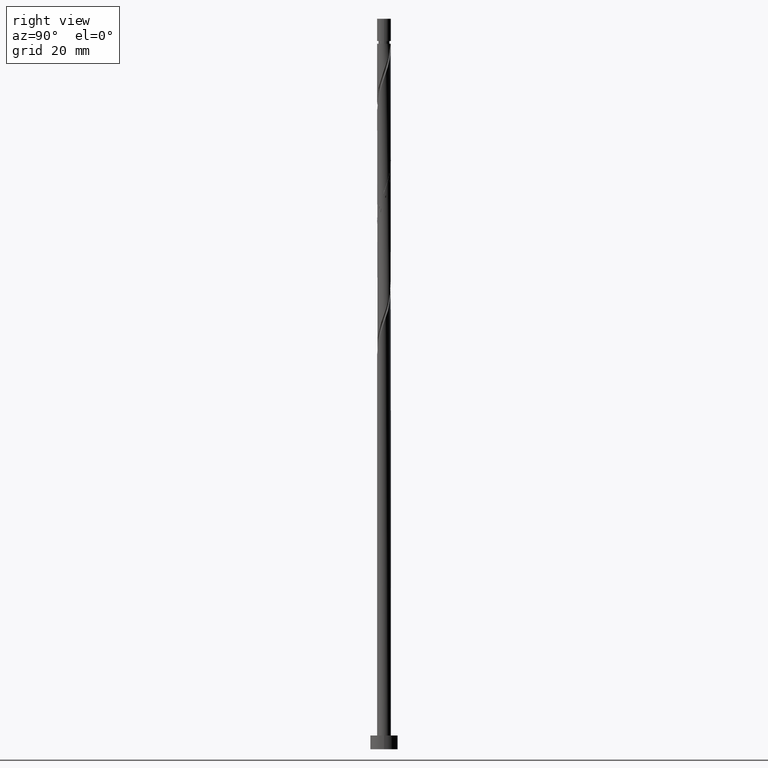
[diagram: clean part render]
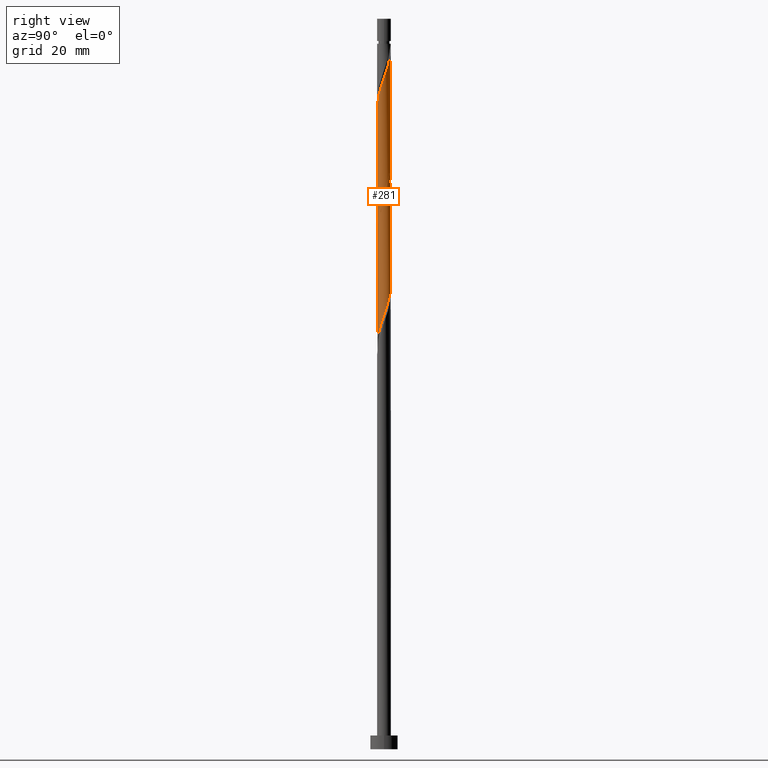
[diagram: same view with one face highlighted and labeled with its STEP entity id]
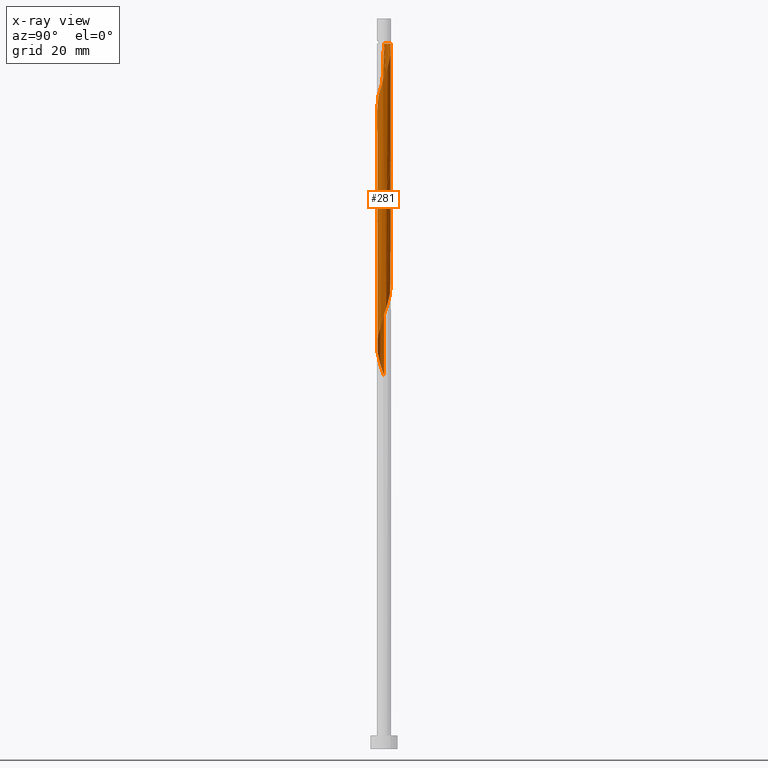
[diagram: x-ray of the same camera — body ghosted, the highlighted face saturated]
A machine part, right view. The second image highlights one B-rep face of the part: STEP entity #281.
The next image is the same camera in x-ray: the body ghosted, the highlighted face saturated — about 0% of this face is hidden behind the body in this view.
In plain terms, the highlighted cylindrical surface (bore or boss wall) has radius 1.5 mm, axis along (-0, -0, -1).
Its self-contained STEP definition (entity closure, byte-faithful):
#6 = CARTESIAN_POINT ( 'NONE',  ( 0.5098503233045974525, 1.427082721123913878, 100.1025614358779023 ) ) ;
#8 = CARTESIAN_POINT ( 'NONE',  ( 1.213159217434433890, -0.8821817914431652197, 92.22377355709001279 ) ) ;
#11 = EDGE_CURVE ( 'NONE', #342, #1527, #286, .T. ) ;
#12 = VERTEX_POINT ( 'NONE', #1467 ) ;
#15 = CARTESIAN_POINT ( 'NONE',  ( 1.412398115979204061, 0.5492212733340094966, 96.46619779951424789 ) ) ;
#39 = CARTESIAN_POINT ( 'NONE',  ( 0.5436309926831520700, -1.398021939668448566, 89.79953113284760491 ) ) ;
#45 = VERTEX_POINT ( 'NONE', #613 ) ;
#49 = CARTESIAN_POINT ( 'NONE',  ( -0.08714213895937755749, 1.512917278876088734, 153.4358947692112451 ) ) ;
#57 = VERTEX_POINT ( 'NONE', #401 ) ;
#70 = CARTESIAN_POINT ( 'NONE',  ( 1.045853010636306202, -1.075263446855226235, 143.1328644661810188 ) ) ;
#78 = CARTESIAN_POINT ( 'NONE',  ( -1.500000000000002442, 7.702762662300539942E-16, 133.1925008959709942 ) ) ;
#87 = CARTESIAN_POINT ( 'NONE',  ( 0.2984962311319868666, 1.469999999999999751, 127.3752887086051828 ) ) ;
#93 = CARTESIAN_POINT ( 'NONE',  ( -0.7005518949784516058, -1.326358564808965745, 112.8298341631506219 ) ) ;
#97 = DIRECTION ( 'NONE',  ( -1.000000000000000000, 0.000000000000000000, 0.000000000000000000 ) ) ;
#102 = CARTESIAN_POINT ( 'NONE',  ( 1.412557076706236980, -0.5046607821568163121, 120.1025614358778881 ) ) ;
#117 = LINE ( 'NONE', #428, #1321 ) ;
#120 = CARTESIAN_POINT ( 'NONE',  ( 1.485116343010913109, -0.3015657354974669579, 94.04195537527184001 ) ) ;
#126 = CARTESIAN_POINT ( 'NONE',  ( 1.306425335299753243, 0.7370568792752199005, 97.07225840557485697 ) ) ;
#138 = DIRECTION ( 'NONE',  ( -1.000000000000000000, 0.000000000000000000, 0.000000000000000000 ) ) ;
#151 = DIRECTION ( 'NONE',  ( -0.000000000000000000, -0.000000000000000000, -1.000000000000000000 ) ) ;
#158 = CARTESIAN_POINT ( 'NONE',  ( 0.7005518949784523830, -1.326358564808968632, 141.9207432540597722 ) ) ;
#161 = CARTESIAN_POINT ( 'NONE',  ( 1.500000000000000222, 1.836970198721030181E-16, 159.5000000000000000 ) ) ;
#171 = CARTESIAN_POINT ( 'NONE',  ( -1.485116343010915330, -0.3015657354974669024, 134.0419553752718684 ) ) ;
#177 = CARTESIAN_POINT ( 'NONE',  ( 0.1277418221353521510, 1.494550777617658754, 152.8298341631505934 ) ) ;
#186 = CARTESIAN_POINT ( 'NONE',  ( -1.213159217434436110, -0.8821817914431666630, 135.8601371934536814 ) ) ;
#188 = CARTESIAN_POINT ( 'NONE',  ( 0.08714213895937576726, 1.512917278876086069, 127.9813493146657919 ) ) ;
#195 = CARTESIAN_POINT ( 'NONE',  ( -1.500000000000000000, 0.04316328978573484576, 134.7693118498545175 ) ) ;
#203 = CARTESIAN_POINT ( 'NONE',  ( -1.213159217434433668, 0.8821817914431653307, 132.2237735570900270 ) ) ;
#209 = CARTESIAN_POINT ( 'NONE',  ( -1.485116343010913109, 0.3015657354974668469, 107.3752887086051686 ) ) ;
#212 = CARTESIAN_POINT ( 'NONE',  ( 1.412398115979204061, 0.5492212733340094966, 123.1328644661809477 ) ) ;
#214 = LINE ( 'NONE', #321, #749 ) ;
#220 = CARTESIAN_POINT ( 'NONE',  ( 0.3426257832300790840, -1.476184276359225667, 115.8601371934536672 ) ) ;
#236 = CARTESIAN_POINT ( 'NONE',  ( 0.7005518949784517169, 1.326358564808965745, 99.49650082981729327 ) ) ;
#238 = CARTESIAN_POINT ( 'NONE',  ( -1.306425335299753243, -0.7370568792752196785, 83.73892507224151416 ) ) ;
#239 = EDGE_CURVE ( 'NONE', #45, #1527, #721, .T. ) ;
#246 = CARTESIAN_POINT ( 'NONE',  ( -1.500000000000000444, 1.757426432660816093E-15, 81.55807652123938567 ) ) ;
#257 = DIRECTION ( 'NONE',  ( -0.000000000000000000, -0.000000000000000000, -1.000000000000000000 ) ) ;
#268 = CARTESIAN_POINT ( 'NONE',  ( -0.1277418221353519845, -1.494550777617658754, 139.4965008298172791 ) ) ;
#275 = CARTESIAN_POINT ( 'NONE',  ( 1.500000000000000222, 1.836970198721030181E-16, 154.0419553752718400 ) ) ;
#281 = ADVANCED_FACE ( 'NONE', ( #545 ), #1027, .T. ) ;
#286 = LINE ( 'NONE', #161, #1179 ) ;
#291 = CARTESIAN_POINT ( 'NONE',  ( -0.5436309926831534023, -1.398021939668451008, 138.2843796176961177 ) ) ;
#299 = CARTESIAN_POINT ( 'NONE',  ( 0.8912534666523075355, -1.225634408494020722, 142.5268038601203102 ) ) ;
#308 = CARTESIAN_POINT ( 'NONE',  ( 0.9154784133017650483, -1.188233678523918035, 117.6783190116354660 ) ) ;
#310 = CARTESIAN_POINT ( 'NONE',  ( -0.7446362021362251671, 1.319859602977671020, 130.4055917389081856 ) ) ;
#314 = CARTESIAN_POINT ( 'NONE',  ( -0.5436309926831520700, 1.398021939668448566, 103.1328644661809193 ) ) ;
#321 = CARTESIAN_POINT ( 'NONE',  ( -1.500000000000000222, 0.000000000000000000, 159.5000000000000000 ) ) ;
#329 = DIRECTION ( 'NONE',  ( -0.000000000000000000, -0.000000000000000000, -1.000000000000000000 ) ) ;
#342 = VERTEX_POINT ( 'NONE', #275 ) ;
#355 = CARTESIAN_POINT ( 'NONE',  ( 1.412557076706236980, -0.5046607821568163121, 93.43589476921121673 ) ) ;
#358 = ORIENTED_EDGE ( 'NONE', *, *, #1291, .F. ) ;
#383 = EDGE_CURVE ( 'NONE', #1527, #862, #711, .T. ) ;
#398 =( BOUNDED_CURVE ( )  B_SPLINE_CURVE ( 2, ( #78, #1366, #754, #171, #1351, #1256, #186, #1233, #1240, #421, #291, #906, #268, #1223, #519, #513, #158, #299, #70, #527, #1134, #647, #626, #1114, #1141, #999, #533, #412, #1479, #775, #639, #543, #991, #1008, #177, #49, #1126 ),
 .UNSPECIFIED., .F., .T. ) 
 B_SPLINE_CURVE_WITH_KNOTS ( ( 3, 2, 2, 2, 2, 2, 2, 2, 2, 2, 2, 2, 2, 2, 2, 2, 2, 2, 3 ),
 ( 0.5545252162417514397, 0.5568181818181818787, 0.5681818181818181213, 0.5795454545454545858, 0.5909090909090908283, 0.6022727272727272929, 0.6136363636363636465, 0.6250000000000000000, 0.6363636363636364646, 0.6477272727272727071, 0.6590909090909091717, 0.6704545454545455252, 0.6818181818181818787, 0.6931818181818182323, 0.7045454545454546968, 0.7159090909090909394, 0.7272727272727274039, 0.7386363636363637575, 0.7500000000000001110 ),
 .UNSPECIFIED. ) 
 CURVE ( )  GEOMETRIC_REPRESENTATION_ITEM ( )  RATIONAL_B_SPLINE_CURVE ( ( 0.9061101570135737804, 0.9072237824201559997, 0.9090909090909334855, 0.8998376744372357239, 0.9090909090909334855, 0.8998376744372357239, 0.9090909090909334855, 0.8998376744372357239, 0.9090909090909334855, 0.8998376744372357239, 0.9090909090909334855, 0.8998376744372357239, 0.9090909090909334855, 0.8998376744372357239, 0.9090909090909334855, 0.8998376744372357239, 0.9090909090909334855, 0.8998376744372357239, 0.9090909090909334855, 0.8998376744372357239, 0.9090909090909334855, 0.8998376744372357239, 0.9090909090909334855, 0.8998376744372357239, 0.9090909090909334855, 0.8998376744372357239, 0.9090909090909334855, 0.8998376744372357239, 0.9090909090909334855, 0.8998376744372357239, 0.9090909090909334855, 0.8998376744372357239, 0.9090909090909334855, 0.8998376744372357239, 0.9090909090909334855, 0.8998376744372356129, 0.9090909090909335966 ) ) 
 REPRESENTATION_ITEM ( '' )  );
#401 = CARTESIAN_POINT ( 'NONE',  ( -1.499999999999993561, 0.000000000000000000, 154.0419553752718400 ) ) ;
#407 = CARTESIAN_POINT ( 'NONE',  ( -0.9154784133017651593, 1.188233678523918035, 131.0116523449688088 ) ) ;
#412 = CARTESIAN_POINT ( 'NONE',  ( 1.339997810401563738, 0.7077558288161661659, 148.5874099207263725 ) ) ;
#420 = CARTESIAN_POINT ( 'NONE',  ( 0.1277418221353510408, -1.494550777617655868, 115.2540765873930297 ) ) ;
#421 = CARTESIAN_POINT ( 'NONE',  ( -0.7446362021362263883, -1.319859602977673019, 137.6783190116354660 ) ) ;
#428 = CARTESIAN_POINT ( 'NONE',  ( -1.500000000000000222, 0.000000000000000000, 159.5000000000000000 ) ) ;
#430 = CARTESIAN_POINT ( 'NONE',  ( 1.497517962423704718, -0.08625515763335836472, 121.3146826479991063 ) ) ;
#433 = CARTESIAN_POINT ( 'NONE',  ( 1.306425335299753243, 0.7370568792752199005, 123.7389250722415284 ) ) ;
#449 = CARTESIAN_POINT ( 'NONE',  ( -0.3426257832300788064, 1.476184276359225889, 102.5268038601203244 ) ) ;
#476 = AXIS2_PLACEMENT_3D ( 'NONE', #742, #151, #138 ) ;
#478 = CARTESIAN_POINT ( 'NONE',  ( 1.461158848907850416, 0.3391383467823799180, 95.86013719345365303 ) ) ;
#489 = CARTESIAN_POINT ( 'NONE',  ( -1.045853010636305314, -1.075263446855223792, 84.95104628436274652 ) ) ;
#496 = CARTESIAN_POINT ( 'NONE',  ( 0.7446362021362249450, -1.319859602977671020, 90.40559173890821398 ) ) ;
#513 = CARTESIAN_POINT ( 'NONE',  ( 0.5098503233045976746, -1.427082721123916320, 141.3146826479991205 ) ) ;
#519 = CARTESIAN_POINT ( 'NONE',  ( 0.2984962311319867556, -1.470000000000002416, 140.7086220419385540 ) ) ;
#527 = CARTESIAN_POINT ( 'NONE',  ( 1.200452554620305756, -0.9248924852164310817, 143.7389250722415568 ) ) ;
#533 = CARTESIAN_POINT ( 'NONE',  ( 1.412557076706239645, 0.5046607821568165342, 147.9813493146658061 ) ) ;
#542 = CARTESIAN_POINT ( 'NONE',  ( -1.200452554620303758, -0.9248924852164293053, 111.0116523449688231 ) ) ;
#543 = CARTESIAN_POINT ( 'NONE',  ( 0.7446362021362260553, 1.319859602977673019, 151.0116523449688373 ) ) ;
#545 = FACE_OUTER_BOUND ( 'NONE', #832, .T. ) ;
#557 = CARTESIAN_POINT ( 'NONE',  ( -1.497517962423704718, 0.08625515763335817043, 107.9813493146657919 ) ) ;
#561 = CARTESIAN_POINT ( 'NONE',  ( -0.3426257832300788064, 1.476184276359225889, 129.1934705267869674 ) ) ;
#613 = CARTESIAN_POINT ( 'NONE',  ( -1.500000000000000000, -3.440068761804149870E-16, 134.8914098545727427 ) ) ;
#620 = ORIENTED_EDGE ( 'NONE', *, *, #1123, .T. ) ;
#626 = CARTESIAN_POINT ( 'NONE',  ( 1.461158848907852859, -0.3391383467823813058, 145.5571068904233982 ) ) ;
#639 = CARTESIAN_POINT ( 'NONE',  ( 0.9154784133017670467, 1.188233678523920034, 150.4055917389082424 ) ) ;
#642 = ORIENTED_EDGE ( 'NONE', *, *, #792, .F. ) ;
#647 = CARTESIAN_POINT ( 'NONE',  ( 1.412398115979206503, -0.5492212733340109398, 144.9510462843627465 ) ) ;
#649 = CARTESIAN_POINT ( 'NONE',  ( -1.339997810401561518, 0.7077558288161657218, 132.8298341631506503 ) ) ;
#657 = CARTESIAN_POINT ( 'NONE',  ( 1.200452554620303536, 0.9248924852164295274, 124.3449856783021517 ) ) ;
#671 = CARTESIAN_POINT ( 'NONE',  ( -0.2984962311319866446, -1.469999999999999751, 114.0419553752718116 ) ) ;
#676 = DIRECTION ( 'NONE',  ( -0.000000000000000000, -0.000000000000000000, -1.000000000000000000 ) ) ;
#681 = CARTESIAN_POINT ( 'NONE',  ( -1.306425335299753243, -0.7370568792752196785, 110.4055917389081998 ) ) ;
#688 = DIRECTION ( 'NONE',  ( -0.000000000000000000, -0.000000000000000000, -1.000000000000000000 ) ) ;
#696 = CARTESIAN_POINT ( 'NONE',  ( -1.045853010636305314, -1.075263446855223792, 111.6177129510294037 ) ) ;
#705 = CARTESIAN_POINT ( 'NONE',  ( -1.200452554620303758, -0.9248924852164293053, 84.34498567830216587 ) ) ;
#711 =( BOUNDED_CURVE ( )  B_SPLINE_CURVE ( 2, ( #998, #1472, #430, #915, #102, #1513, #814, #808, #308, #1295, #1054, #220, #420, #1530, #671, #1156, #93, #789, #696, #542, #681, #1172, #1285, #904, #557, #209, #1504, #1521, #1383, #1148, #1032, #1278, #314, #449, #1541, #836, #1069, #6, #236, #952, #1078, #713, #126, #15, #478, #961, #1438, #120, #355, #733, #8, #838, #1080, #496, #39, #1441, #1315, #1193, #979, #1088, #1216, #1201, #489, #705, #238, #715, #826, #846, #246 ),
 .UNSPECIFIED., .F., .T. ) 
 B_SPLINE_CURVE_WITH_KNOTS ( ( 3, 2, 2, 2, 2, 2, 2, 2, 2, 2, 2, 2, 2, 2, 2, 2, 2, 2, 2, 2, 2, 2, 2, 2, 2, 2, 2, 2, 2, 2, 2, 2, 2, 2, 3 ),
 ( 0.5545252162417513286, 0.5568181818181817677, 0.5681818181818182323, 0.5795454545454545858, 0.5909090909090909394, 0.6022727272727272929, 0.6136363636363636465, 0.6250000000000000000, 0.6363636363636363535, 0.6477272727272727071, 0.6590909090909090606, 0.6704545454545454142, 0.6818181818181817677, 0.6931818181818182323, 0.7045454545454545858, 0.7159090909090909394, 0.7272727272727272929, 0.7386363636363636465, 0.7500000000000000000, 0.7613636363636363535, 0.7727272727272727071, 0.7840909090909090606, 0.7954545454545454142, 0.8068181818181817677, 0.8181818181818182323, 0.8295454545454545858, 0.8409090909090909394, 0.8522727272727272929, 0.8636363636363636465, 0.8750000000000000000, 0.8863636363636363535, 0.8977272727272727071, 0.9090909090909091717, 0.9204545454545454142, 0.9295252162417513286 ),
 .UNSPECIFIED. ) 
 CURVE ( )  GEOMETRIC_REPRESENTATION_ITEM ( )  RATIONAL_B_SPLINE_CURVE ( ( 0.9061101570135671190, 0.9072237824201493384, 0.9090909090909268242, 0.8998376744372288405, 0.9090909090909268242, 0.8998376744372288405, 0.9090909090909268242, 0.8998376744372288405, 0.9090909090909268242, 0.8998376744372288405, 0.9090909090909268242, 0.8998376744372288405, 0.9090909090909268242, 0.8998376744372288405, 0.9090909090909268242, 0.8998376744372288405, 0.9090909090909268242, 0.8998376744372288405, 0.9090909090909268242, 0.8998376744372288405, 0.9090909090909268242, 0.8998376744372288405, 0.9090909090909268242, 0.8998376744372288405, 0.9090909090909268242, 0.8998376744372288405, 0.9090909090909268242, 0.8998376744372288405, 0.9090909090909268242, 0.8998376744372288405, 0.9090909090909268242, 0.8998376744372288405, 0.9090909090909268242, 0.8998376744372288405, 0.9090909090909268242, 0.8998376744372288405, 0.9090909090909268242, 0.8998376744372288405, 0.9090909090909268242, 0.8998376744372288405, 0.9090909090909268242, 0.8998376744372288405, 0.9090909090909268242, 0.8998376744372288405, 0.9090909090909268242, 0.8998376744372288405, 0.9090909090909268242, 0.8998376744372288405, 0.9090909090909268242, 0.8998376744372288405, 0.9090909090909268242, 0.8998376744372288405, 0.9090909090909268242, 0.8998376744372288405, 0.9090909090909268242, 0.8998376744372288405, 0.9090909090909268242, 0.8998376744372288405, 0.9090909090909268242, 0.8998376744372288405, 0.9090909090909268242, 0.8998376744372288405, 0.9090909090909268242, 0.8998376744372288405, 0.9090909090909268242, 0.8998376744372288405, 0.9090909090909268242, 0.9017048011080063263, 0.9061101570135671190 ) ) 
 REPRESENTATION_ITEM ( '' )  );
#713 = CARTESIAN_POINT ( 'NONE',  ( 1.200452554620303536, 0.9248924852164295274, 97.67831901163546604 ) ) ;
#715 = CARTESIAN_POINT ( 'NONE',  ( -1.412398115979203617, -0.5492212733340102737, 83.13286446618094772 ) ) ;
#721 =( BOUNDED_CURVE ( )  B_SPLINE_CURVE ( 2, ( #1525, #195, #1251, #1037, #1281, #649, #203, #1404, #407, #310, #769, #561, #1136, #188, #87, #1516, #1270, #908, #892, #657, #433, #212, #1395, #1387, #1369 ),
 .UNSPECIFIED., .F., .T. ) 
 B_SPLINE_CURVE_WITH_KNOTS ( ( 3, 2, 2, 2, 2, 2, 2, 2, 2, 2, 2, 2, 3 ),
 ( 0.4295252162417513841, 0.4318181818181818232, 0.4431818181818181768, 0.4545454545454545303, 0.4659090909090908839, 0.4772727272727272929, 0.4886363636363636465, 0.5000000000000000000, 0.5113636363636363535, 0.5227272727272727071, 0.5340909090909090606, 0.5454545454545454142, 0.5545252162417513286 ),
 .UNSPECIFIED. ) 
 CURVE ( )  GEOMETRIC_REPRESENTATION_ITEM ( )  RATIONAL_B_SPLINE_CURVE ( ( 0.9061101570135671190, 0.9072237824201493384, 0.9090909090909268242, 0.8998376744372288405, 0.9090909090909268242, 0.8998376744372288405, 0.9090909090909268242, 0.8998376744372288405, 0.9090909090909268242, 0.8998376744372288405, 0.9090909090909268242, 0.8998376744372288405, 0.9090909090909268242, 0.8998376744372288405, 0.9090909090909268242, 0.8998376744372288405, 0.9090909090909268242, 0.8998376744372288405, 0.9090909090909268242, 0.8998376744372288405, 0.9090909090909268242, 0.8998376744372288405, 0.9090909090909268242, 0.9017048011080063263, 0.9061101570135671190 ) ) 
 REPRESENTATION_ITEM ( '' )  );
#733 = CARTESIAN_POINT ( 'NONE',  ( 1.339997810401561518, -0.7077558288161656108, 92.82983416315066449 ) ) ;
#742 = CARTESIAN_POINT ( 'NONE',  ( 0.000000000000000000, 0.000000000000000000, 154.0419553752718400 ) ) ;
#749 = VECTOR ( 'NONE', #688, 1000.000000000000000 ) ;
#754 = CARTESIAN_POINT ( 'NONE',  ( -1.497517962423707383, -0.08625515763335786512, 133.4358947692112736 ) ) ;
#756 = VERTEX_POINT ( 'NONE', #1171 ) ;
#769 = CARTESIAN_POINT ( 'NONE',  ( -0.5436309926831520700, 1.398021939668448566, 129.7995311328475907 ) ) ;
#775 = CARTESIAN_POINT ( 'NONE',  ( 1.086320624467308482, 1.056607754070166161, 149.7995311328476475 ) ) ;
#789 = CARTESIAN_POINT ( 'NONE',  ( -0.8912534666523063143, -1.225634408494019167, 112.2237735570900412 ) ) ;
#792 = EDGE_CURVE ( 'NONE', #57, #45, #214, .T. ) ;
#793 = CARTESIAN_POINT ( 'NONE',  ( 0.000000000000000000, 0.000000000000000000, 159.5000000000000000 ) ) ;
#798 = CARTESIAN_POINT ( 'NONE',  ( 1.499999999999999778, 2.131346950248223336E-15, 121.5580765212393857 ) ) ;
#808 = CARTESIAN_POINT ( 'NONE',  ( 1.086320624467306484, -1.056607754070165273, 118.2843796176961035 ) ) ;
#814 = CARTESIAN_POINT ( 'NONE',  ( 1.213159217434433890, -0.8821817914431652197, 118.8904402237566984 ) ) ;
#826 = CARTESIAN_POINT ( 'NONE',  ( -1.461158848907849972, -0.3391383467823803621, 82.52680386012033864 ) ) ;
#832 = EDGE_LOOP ( 'NONE', ( #642, #1273, #358, #620, #1181, #841, #958, #1020 ) ) ;
#836 = CARTESIAN_POINT ( 'NONE',  ( 0.08714213895937576726, 1.512917278876086069, 101.3146826479991205 ) ) ;
#838 = CARTESIAN_POINT ( 'NONE',  ( 1.086320624467306484, -1.056607754070165273, 91.61771295102943213 ) ) ;
#841 = ORIENTED_EDGE ( 'NONE', *, *, #11, .F. ) ;
#846 = CARTESIAN_POINT ( 'NONE',  ( -1.500000000000000444, -0.1717933910776832107, 82.04403647421071355 ) ) ;
#858 = AXIS2_PLACEMENT_3D ( 'NONE', #793, #676, #97 ) ;
#862 = VERTEX_POINT ( 'NONE', #1176 ) ;
#892 = CARTESIAN_POINT ( 'NONE',  ( 1.045853010636304870, 1.075263446855224236, 124.9510462843627465 ) ) ;
#904 = CARTESIAN_POINT ( 'NONE',  ( -1.509919581836496993, -0.1290554202307509224, 108.5874099207263868 ) ) ;
#906 = CARTESIAN_POINT ( 'NONE',  ( -0.3426257832300795281, -1.476184276359228109, 138.8904402237566558 ) ) ;
#908 = CARTESIAN_POINT ( 'NONE',  ( 0.8912534666523063143, 1.225634408494018723, 125.5571068904233556 ) ) ;
#915 = CARTESIAN_POINT ( 'NONE',  ( 1.485116343010913109, -0.3015657354974669579, 120.7086220419385256 ) ) ;
#952 = CARTESIAN_POINT ( 'NONE',  ( 0.8912534666523063143, 1.225634408494018723, 98.89044022375671261 ) ) ;
#958 = ORIENTED_EDGE ( 'NONE', *, *, #11, .T. ) ;
#961 = CARTESIAN_POINT ( 'NONE',  ( 1.509919581836496993, 0.1290554202307504228, 95.25407658739304395 ) ) ;
#979 = CARTESIAN_POINT ( 'NONE',  ( -0.2984962311319866446, -1.469999999999999751, 87.37528870860516861 ) ) ;
#991 = CARTESIAN_POINT ( 'NONE',  ( 0.5436309926831531802, 1.398021939668451008, 151.6177129510294606 ) ) ;
#998 = CARTESIAN_POINT ( 'NONE',  ( 1.499999999999999778, 2.131346950248223336E-15, 121.5580765212393857 ) ) ;
#999 = CARTESIAN_POINT ( 'NONE',  ( 1.485116343010915330, 0.3015657354974667359, 147.3752887086052112 ) ) ;
#1008 = CARTESIAN_POINT ( 'NONE',  ( 0.3426257832300796946, 1.476184276359228109, 152.2237735570900270 ) ) ;
#1020 = ORIENTED_EDGE ( 'NONE', *, *, #239, .F. ) ;
#1027 = CYLINDRICAL_SURFACE ( 'NONE', #858, 1.500000000000000222 ) ;
#1032 = CARTESIAN_POINT ( 'NONE',  ( -0.9154784133017651593, 1.188233678523918035, 104.3449856783021374 ) ) ;
#1037 = CARTESIAN_POINT ( 'NONE',  ( -1.485116343010913109, 0.3015657354974668469, 134.0419553752718684 ) ) ;
#1054 = CARTESIAN_POINT ( 'NONE',  ( 0.5436309926831520700, -1.398021939668448566, 116.4661977995142763 ) ) ;
#1069 = CARTESIAN_POINT ( 'NONE',  ( 0.2984962311319868666, 1.469999999999999751, 100.7086220419384972 ) ) ;
#1078 = CARTESIAN_POINT ( 'NONE',  ( 1.045853010636304870, 1.075263446855224236, 98.28437961769607512 ) ) ;
#1080 = CARTESIAN_POINT ( 'NONE',  ( 0.9154784133017650483, -1.188233678523918035, 91.01165234496880885 ) ) ;
#1088 = CARTESIAN_POINT ( 'NONE',  ( -0.5098503233045974525, -1.427082721123913878, 86.76922810254457374 ) ) ;
#1114 = CARTESIAN_POINT ( 'NONE',  ( 1.509919581836498992, -0.1290554202307514498, 146.1631674964839647 ) ) ;
#1123 = EDGE_CURVE ( 'NONE', #756, #862, #117, .T. ) ;
#1126 = CARTESIAN_POINT ( 'NONE',  ( -0.2984962311320396022, 1.470000000000531770, 154.0419553752718116 ) ) ;
#1134 = CARTESIAN_POINT ( 'NONE',  ( 1.306425335299755464, -0.7370568792752213438, 144.3449856783021232 ) ) ;
#1136 = CARTESIAN_POINT ( 'NONE',  ( -0.1277418221353515404, 1.494550777617655868, 128.5874099207263725 ) ) ;
#1141 = CARTESIAN_POINT ( 'NONE',  ( 1.497517962423707383, 0.08625515763335768471, 146.7692281025446164 ) ) ;
#1148 = CARTESIAN_POINT ( 'NONE',  ( -1.086320624467306040, 1.056607754070165717, 104.9510462843627607 ) ) ;
#1156 = CARTESIAN_POINT ( 'NONE',  ( -0.5098503233045974525, -1.427082721123913878, 113.4358947692112451 ) ) ;
#1171 = CARTESIAN_POINT ( 'NONE',  ( -1.500000000000002442, 7.702762662300539942E-16, 133.1925008959709942 ) ) ;
#1172 = CARTESIAN_POINT ( 'NONE',  ( -1.412398115979203617, -0.5492212733340102737, 109.7995311328476191 ) ) ;
#1176 = CARTESIAN_POINT ( 'NONE',  ( -1.500000000000000444, 1.757426432660816093E-15, 81.55807652123938567 ) ) ;
#1179 = VECTOR ( 'NONE', #257, 1000.000000000000000 ) ;
#1181 = ORIENTED_EDGE ( 'NONE', *, *, #383, .F. ) ;
#1193 = CARTESIAN_POINT ( 'NONE',  ( -0.08714213895937615584, -1.512917278876086735, 87.98134931466580611 ) ) ;
#1201 = CARTESIAN_POINT ( 'NONE',  ( -0.8912534666523063143, -1.225634408494019167, 85.55710689042338402 ) ) ;
#1204 = CIRCLE ( 'NONE', #476, 1.499999999999993561 ) ;
#1216 = CARTESIAN_POINT ( 'NONE',  ( -0.7005518949784516058, -1.326358564808965745, 86.16316749648395046 ) ) ;
#1223 = CARTESIAN_POINT ( 'NONE',  ( 0.08714213895937560073, -1.512917278876088512, 140.1025614358779023 ) ) ;
#1233 = CARTESIAN_POINT ( 'NONE',  ( -1.086320624467308038, -1.056607754070166383, 136.4661977995142479 ) ) ;
#1240 = CARTESIAN_POINT ( 'NONE',  ( -0.9154784133017672687, -1.188233678523920034, 137.0722584055748712 ) ) ;
#1242 = EDGE_CURVE ( 'NONE', #57, #12, #1204, .T. ) ;
#1251 = CARTESIAN_POINT ( 'NONE',  ( -1.497517962423704718, 0.08625515763335817043, 134.6480159813324633 ) ) ;
#1256 = CARTESIAN_POINT ( 'NONE',  ( -1.339997810401563294, -0.7077558288161666100, 135.2540765873930297 ) ) ;
#1270 = CARTESIAN_POINT ( 'NONE',  ( 0.7005518949784517169, 1.326358564808965745, 126.1631674964839789 ) ) ;
#1273 = ORIENTED_EDGE ( 'NONE', *, *, #1242, .T. ) ;
#1278 = CARTESIAN_POINT ( 'NONE',  ( -0.7446362021362251671, 1.319859602977671020, 103.7389250722415568 ) ) ;
#1281 = CARTESIAN_POINT ( 'NONE',  ( -1.412557076706236980, 0.5046607821568160901, 133.4358947692112451 ) ) ;
#1285 = CARTESIAN_POINT ( 'NONE',  ( -1.461158848907849972, -0.3391383467823803621, 109.1934705267869816 ) ) ;
#1291 = EDGE_CURVE ( 'NONE', #756, #12, #398, .T. ) ;
#1295 = CARTESIAN_POINT ( 'NONE',  ( 0.7446362021362249450, -1.319859602977671020, 117.0722584055748712 ) ) ;
#1315 = CARTESIAN_POINT ( 'NONE',  ( 0.1277418221353510408, -1.494550777617655868, 88.58740992072637255 ) ) ;
#1321 = VECTOR ( 'NONE', #329, 1000.000000000000000 ) ;
#1351 = CARTESIAN_POINT ( 'NONE',  ( -1.412557076706239645, -0.5046607821568167562, 134.6480159813324917 ) ) ;
#1366 = CARTESIAN_POINT ( 'NONE',  ( -1.500000000000002442, -0.04316328978573490127, 133.3145989006892194 ) ) ;
#1369 = CARTESIAN_POINT ( 'NONE',  ( 1.499999999999999778, 2.131346950248223336E-15, 121.5580765212393857 ) ) ;
#1383 = CARTESIAN_POINT ( 'NONE',  ( -1.213159217434433668, 0.8821817914431653307, 105.5571068904233556 ) ) ;
#1387 = CARTESIAN_POINT ( 'NONE',  ( 1.500000000000000444, 0.1717933910776827111, 122.0440364742106993 ) ) ;
#1395 = CARTESIAN_POINT ( 'NONE',  ( 1.461158848907850416, 0.3391383467823799180, 122.5268038601203102 ) ) ;
#1404 = CARTESIAN_POINT ( 'NONE',  ( -1.086320624467306040, 1.056607754070165717, 131.6177129510294321 ) ) ;
#1438 = CARTESIAN_POINT ( 'NONE',  ( 1.497517962423704718, -0.08625515763335836472, 94.64801598133243488 ) ) ;
#1441 = CARTESIAN_POINT ( 'NONE',  ( 0.3426257832300790840, -1.476184276359225667, 89.19347052678699583 ) ) ;
#1467 = CARTESIAN_POINT ( 'NONE',  ( -0.2984962311320396022, 1.470000000000531770, 154.0419553752718116 ) ) ;
#1472 = CARTESIAN_POINT ( 'NONE',  ( 1.500000000000000000, -0.04316328978573510944, 121.4359785165211747 ) ) ;
#1479 = CARTESIAN_POINT ( 'NONE',  ( 1.213159217434436110, 0.8821817914431661078, 149.1934705267870243 ) ) ;
#1504 = CARTESIAN_POINT ( 'NONE',  ( -1.412557076706236980, 0.5046607821568160901, 106.7692281025445595 ) ) ;
#1513 = CARTESIAN_POINT ( 'NONE',  ( 1.339997810401561518, -0.7077558288161656108, 119.4965008298173075 ) ) ;
#1516 = CARTESIAN_POINT ( 'NONE',  ( 0.5098503233045974525, 1.427082721123913878, 126.7692281025445595 ) ) ;
#1521 = CARTESIAN_POINT ( 'NONE',  ( -1.339997810401561518, 0.7077558288161657218, 106.1631674964839362 ) ) ;
#1525 = CARTESIAN_POINT ( 'NONE',  ( -1.500000000000000000, -3.440068761804149870E-16, 134.8914098545727427 ) ) ;
#1527 = VERTEX_POINT ( 'NONE', #798 ) ;
#1530 = CARTESIAN_POINT ( 'NONE',  ( -0.08714213895937615584, -1.512917278876086735, 114.6480159813324491 ) ) ;
#1541 = CARTESIAN_POINT ( 'NONE',  ( -0.1277418221353515404, 1.494550777617655868, 101.9207432540597296 ) ) ;